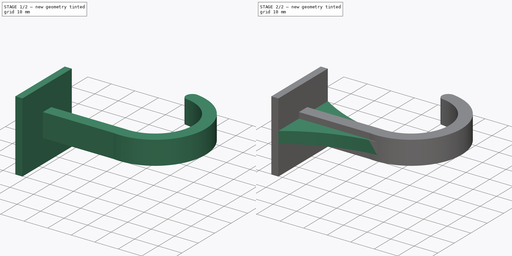
[diagram: build sequence overview — one tinted view per stage of 2, left to right]
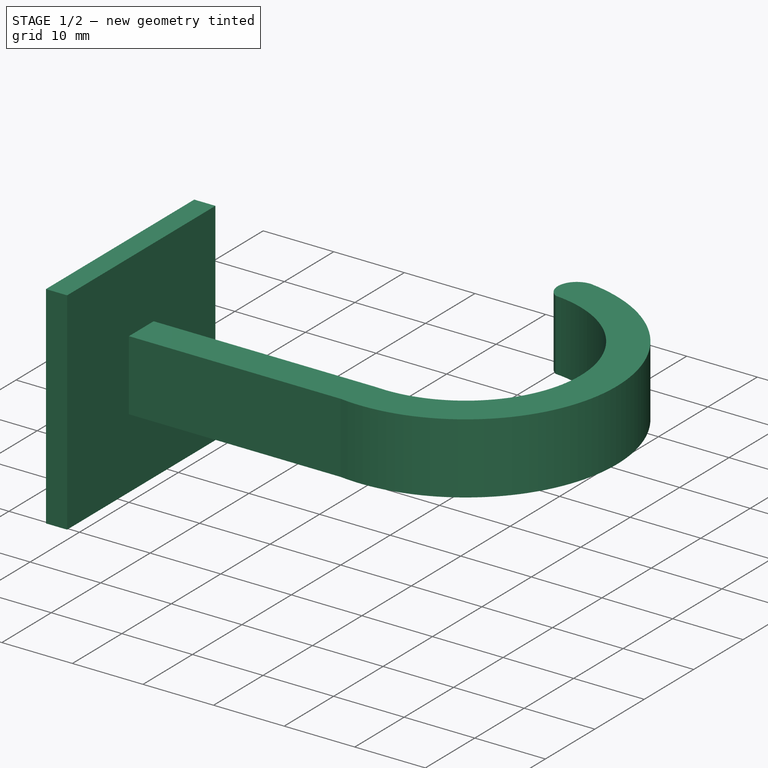
[diagram: stage 1 of 2 — iso view after this stage's code; geometry added in this stage tinted green]
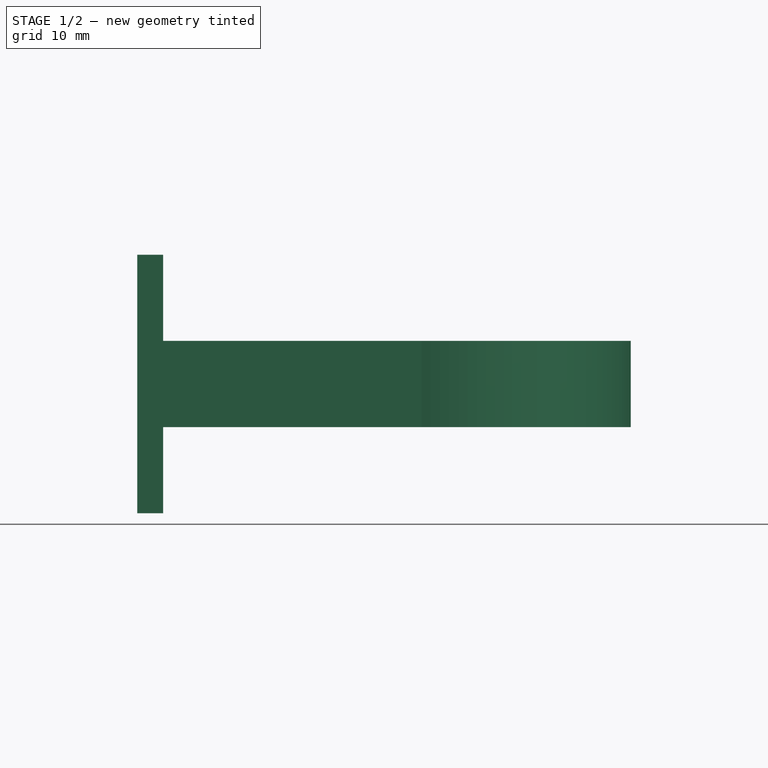
[diagram: stage 1 of 2 — front view after this stage's code; geometry added in this stage tinted green]
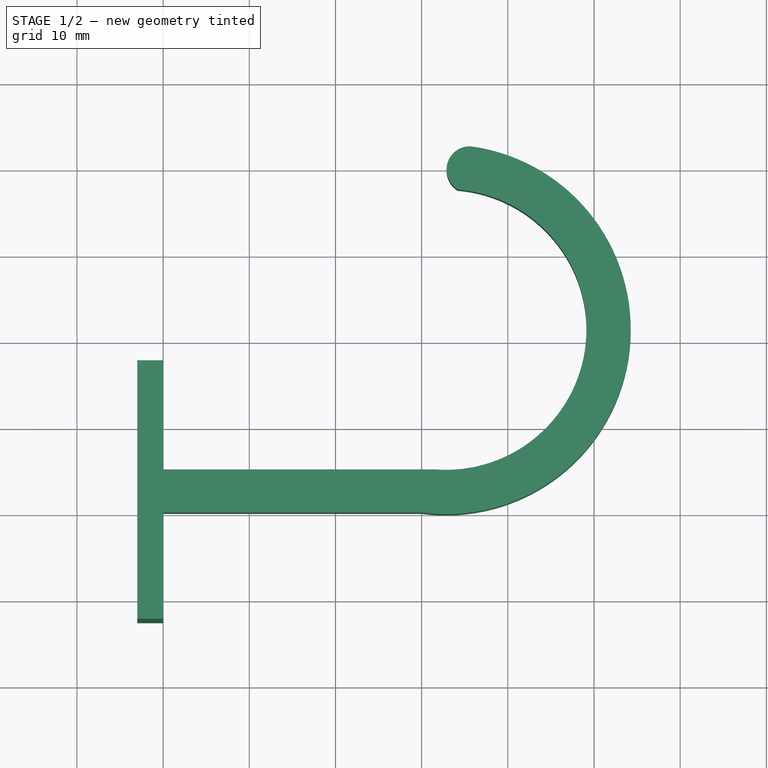
[diagram: stage 1 of 2 — top view after this stage's code; geometry added in this stage tinted green]
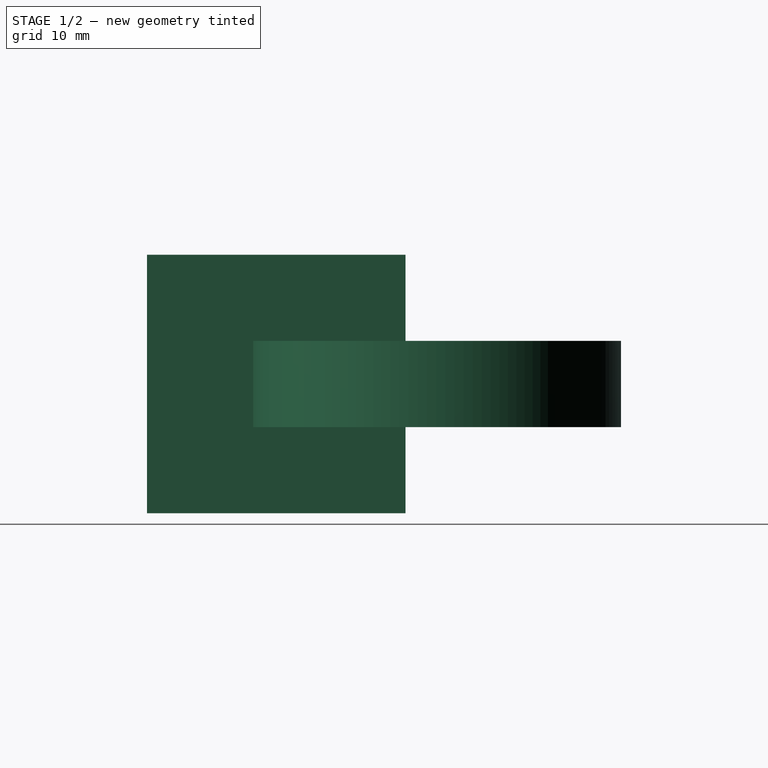
[diagram: stage 1 of 2 — right view after this stage's code; geometry added in this stage tinted green]
FCSTD DOCUMENT  (FreeCAD 0.20R29177 (Git))
Label: support Poubelle
License: All rights reserved
LicenseURL: http://en.wikipedia.org/wiki/All_rights_reserved
objects: Sketcher::SketchObject×3, PartDesign::Pad×3, PartDesign::Body×1
note: 10 computed .brp shape members not serialized (recipe doc carries the construction recipe); baked Part::Feature solids carry a one-line shape summary decoded from their .brp

FEATURE [Sketcher::SketchObject] Sketch
  FullyConstrained = false
  MapMode = 5
  Support = -> [XY_Plane]
  sketch-geometry (6):
    g0: LineSegment StartX=0 StartY=0 StartZ=0 EndX=30 EndY=0 EndZ=0
    g1: ArcOfCircle CenterX=32.8241 CenterY=21.2539 CenterZ=0 NormalX=0 NormalY=0 NormalZ=1 AngleXU=0 Radius=21.4407 StartAngle=4.58029 EndAngle=7.71773
    g2: LineSegment StartX=0 StartY=0 StartZ=0 EndX=0 EndY=5 EndZ=0
    g3: LineSegment StartX=0 StartY=5 StartZ=0 EndX=31.5985 EndY=5 EndZ=0
    g4: ArcOfCircle CenterX=32.8241 CenterY=21.2539 CenterZ=0 NormalX=0 NormalY=0 NormalZ=1 AngleXU=0 Radius=16.3 StartAngle=4.63713 EndAngle=7.76955
    g5: ArcOfCircle CenterX=35.5822 CenterY=39.8068 CenterZ=0 NormalX=0 NormalY=0 NormalZ=1 AngleXU=0 Radius=2.69347 StartAngle=1.5135 EndAngle=4.17292
  constraints (15):
    c: Horizontal(g0)
    c: Coincident(g1,g0)
    c: Coincident(g0,g2)
    c: Vertical(g2)
    c: Coincident(g2,g3)
    c: Horizontal(g3)
    c: Coincident(g4,g3)
    c: Coincident(g4,g1)
    c: Coincident(g0,g-1)
    c: DistanceY(g2,g2) = 5
    c: DistanceY(g4,g1) = 5
    c: Radius(g4) = 16.3
    c: Coincident(g5,g1)
    c: Coincident(g5,g4)
    c: DistanceX(g0,g0) = 30
FEATURE [PartDesign::Pad] Pad
  Direction = (0,0,1)
  Length = 10
  Length2 = 10
  Profile = -> Sketch
  ReferenceAxis = -> Sketch [N_Axis]
  Type = 0
FEATURE [Sketcher::SketchObject] Sketch001
  FullyConstrained = false
  MapMode = 5
  Placement = pos=(0,0,0) rot=(0.57735,0.57735,0.57735;2.0944rad)
  Support = -> [YZ_Plane]
  sketch-geometry (6):
    g0: LineSegment StartX=-12.5 StartY=20 StartZ=0 EndX=17.5 EndY=20 EndZ=0
    g1: LineSegment StartX=17.5 StartY=20 StartZ=0 EndX=17.5 EndY=-10 EndZ=0
    g2: LineSegment StartX=17.5 StartY=-10 StartZ=0 EndX=-12.5 EndY=-10 EndZ=0
    g3: LineSegment StartX=-12.5 StartY=-10 StartZ=0 EndX=-12.5 EndY=20 EndZ=0
    g4: LineSegment StartX=-29.7365 StartY=5 StartZ=0 EndX=52.0411 EndY=5 EndZ=0
    g5: LineSegment StartX=2.5 StartY=39.9514 StartZ=0 EndX=2.5 EndY=-22.0017 EndZ=0
  constraints (14):
    c: Coincident(g0,g1)
    c: Coincident(g1,g2)
    c: Coincident(g2,g3)
    c: Coincident(g3,g0)
    c: Horizontal(g2)
    c: Vertical(g1)
    c: DistanceX(g0,g0) = 30
    c: Vertical(g3)
    c: DistanceY(g3,g3) = 30
    c: Horizontal(g0)
    c: DistanceX(g-1,g5) = 2.5
    c: DistanceY(g-1,g4) = 5
    c: Symmetric(g0,g0,g5)
    c: Symmetric(g0,g2,g4)
FEATURE [PartDesign::Pad] Pad001
  BaseFeature = -> Pad
  Direction = (1,-2e-16,3e-16)
  Length = 3
  Length2 = 10
  Profile = -> Sketch001
  ReferenceAxis = -> Sketch001 [N_Axis]
  Reversed = true
  Type = 0
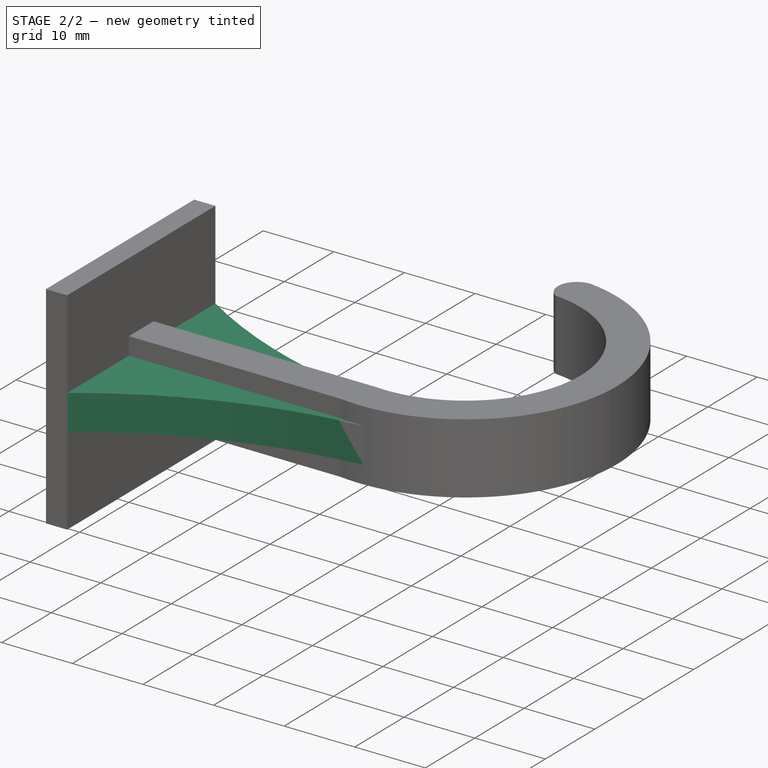
[diagram: stage 2 of 2 — iso view after this stage's code; geometry added in this stage tinted green]
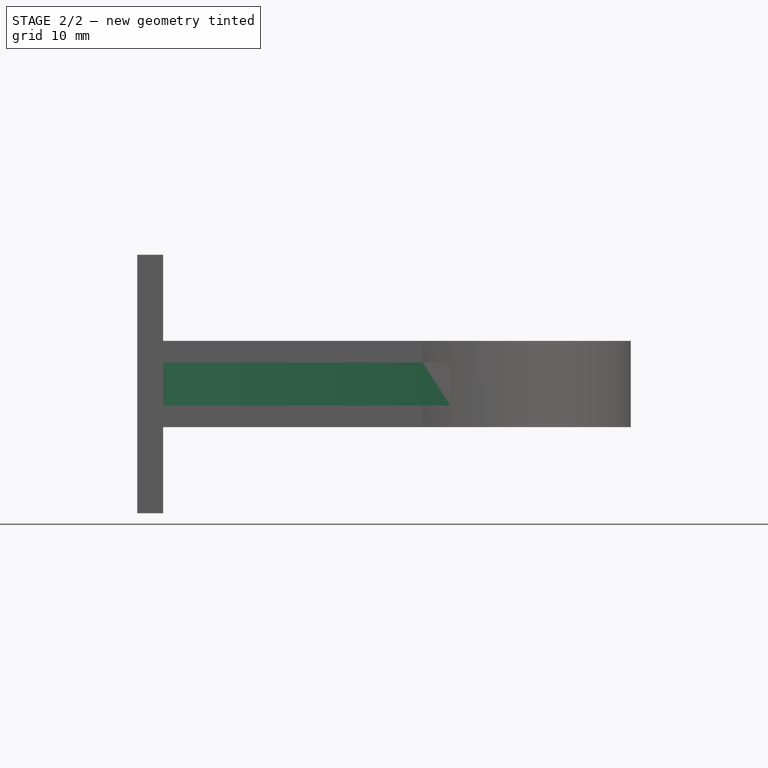
[diagram: stage 2 of 2 — front view after this stage's code; geometry added in this stage tinted green]
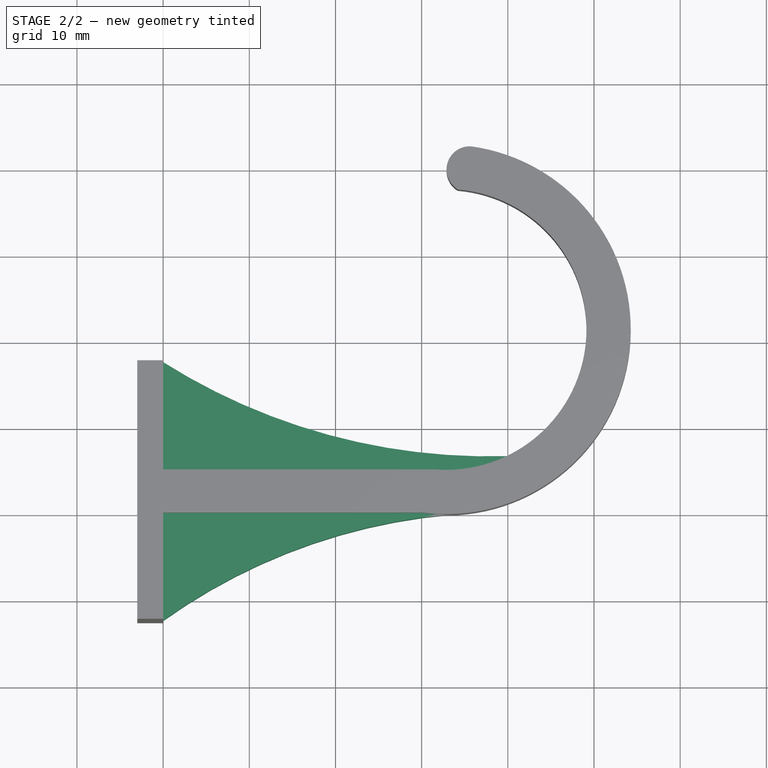
[diagram: stage 2 of 2 — top view after this stage's code; geometry added in this stage tinted green]
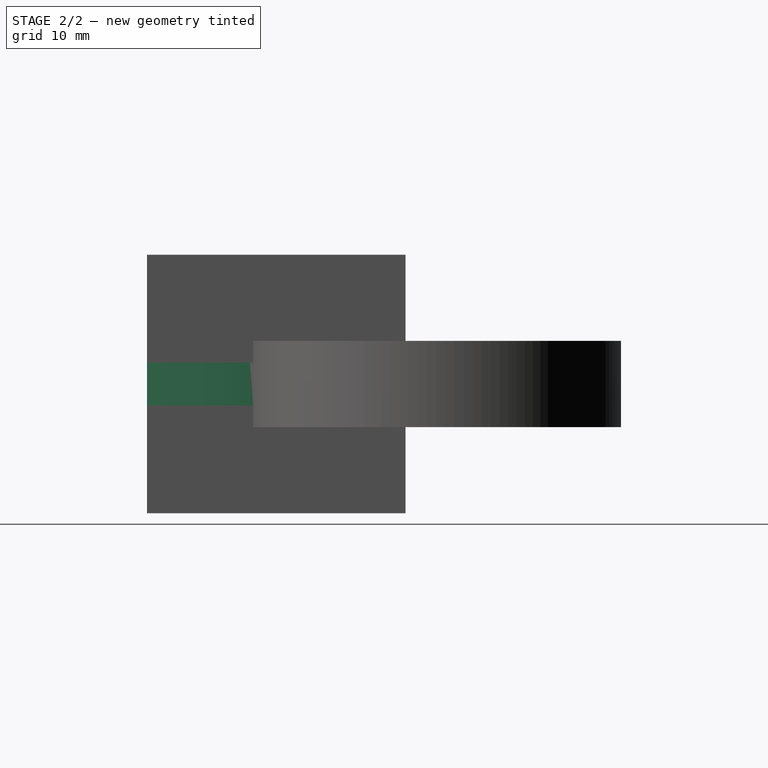
[diagram: stage 2 of 2 — right view after this stage's code; geometry added in this stage tinted green]
FEATURE [Sketcher::SketchObject] Sketch002
  AttachmentOffset = pos=(0,0,2.5) rot=(0,0,1;0rad)
  ExternalGeometry = -> [Sketch001,Sketch]
  FullyConstrained = false
  MapMode = 5
  Placement = pos=(0,0,2.5) rot=(0,0,1;0rad)
  Support = -> [XY_Plane]
  sketch-geometry (4):
    g0: ArcOfCircle CenterX=37.8193 CenterY=77.4083 CenterZ=0 NormalX=0 NormalY=0 NormalZ=1 AngleXU=0 Radius=70.8471 StartAngle=4.14928 EndAngle=4.74245
    g1: LineSegment StartX=1.42e-14 StartY=17.5 StartZ=0 EndX=-7.1e-15 EndY=-12.5 EndZ=0
    g2: ArcOfCircle CenterX=39.1871 CenterY=-67.2811 CenterZ=0 NormalX=0 NormalY=0 NormalZ=1 AngleXU=0 Radius=67.3543 StartAngle=1.62749 EndAngle=2.19174
    g3: LineSegment StartX=39.9484 StartY=6.59325 StartZ=0 EndX=35.3705 EndY=-0.0350506 EndZ=0
  constraints (8):
    c: Coincident(g0,g-3)
    c: Coincident(g0,g1)
    c: Coincident(g2,g-3)
    c: Coincident(g1,g2)
    c: PointOnObject(g0,g-6)
    c: Coincident(g3,g0)
    c: PointOnObject(g2,g-7)
    c: Coincident(g2,g3)
FEATURE [PartDesign::Pad] Pad002
  BaseFeature = -> Pad001
  Direction = (0,0,1)
  Length = 5
  Length2 = 10
  Profile = -> Sketch002
  ReferenceAxis = -> Sketch002 [N_Axis]
  Type = 0
FEATURE [PartDesign::Body] Body
  Group = -> [Sketch,Pad,Sketch001,Pad001,Sketch002,Pad002]
  Origin = -> Origin
  Tip = -> Pad002
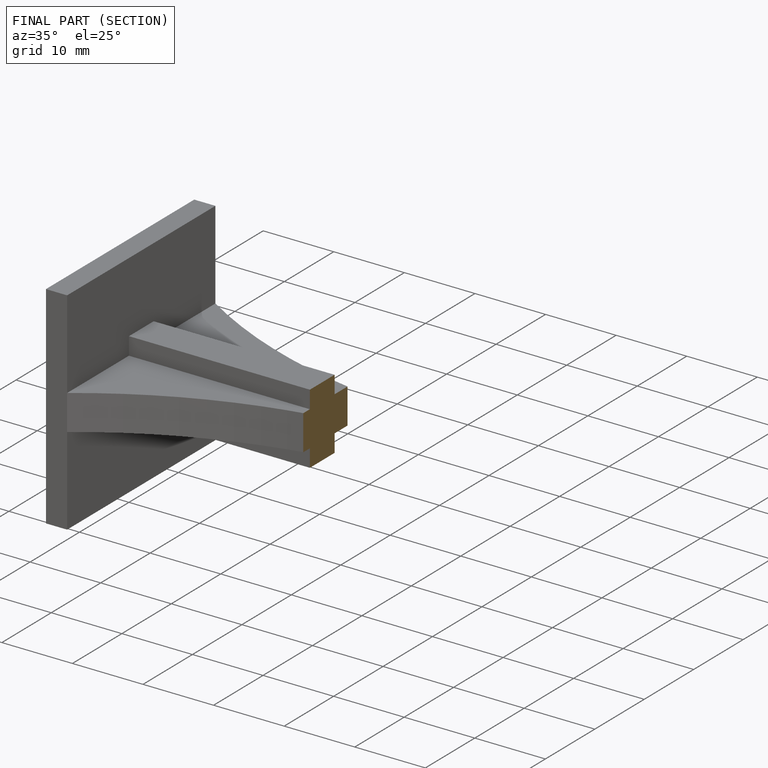
[diagram: finished part — half-section view (interior)]
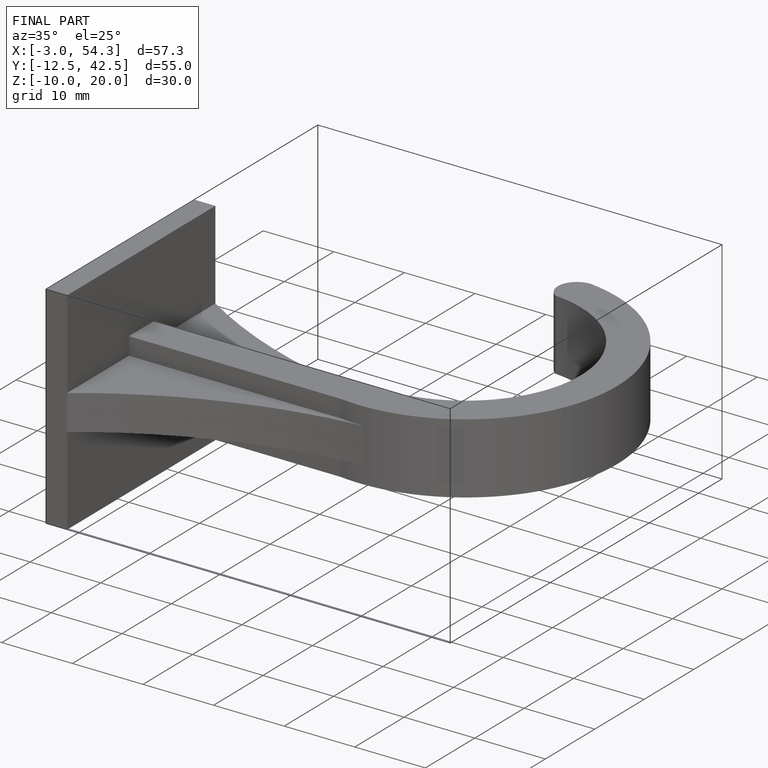
[diagram: finished part — iso view with bounding-box wireframe]
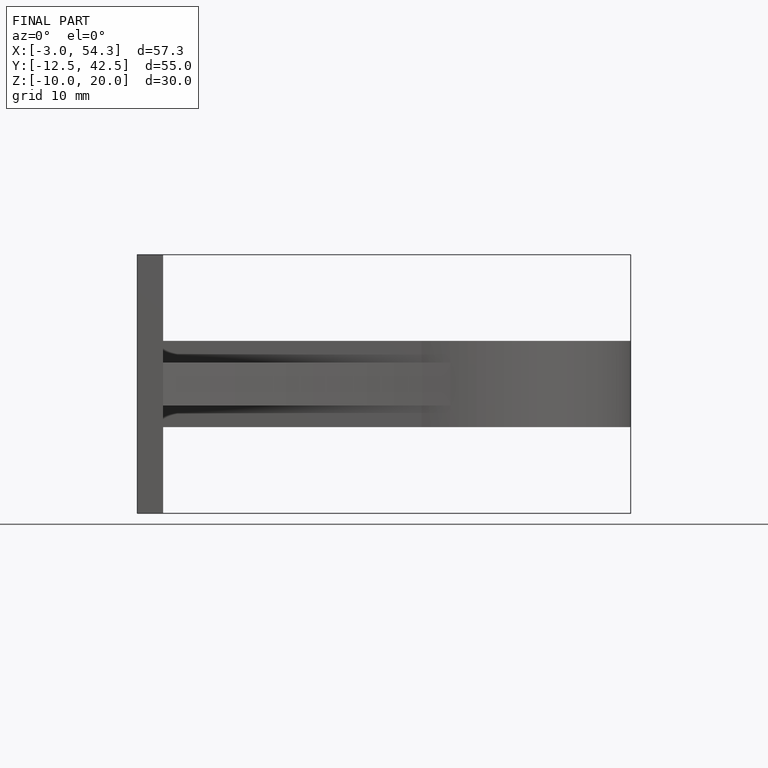
[diagram: finished part — front view with bounding-box wireframe]
